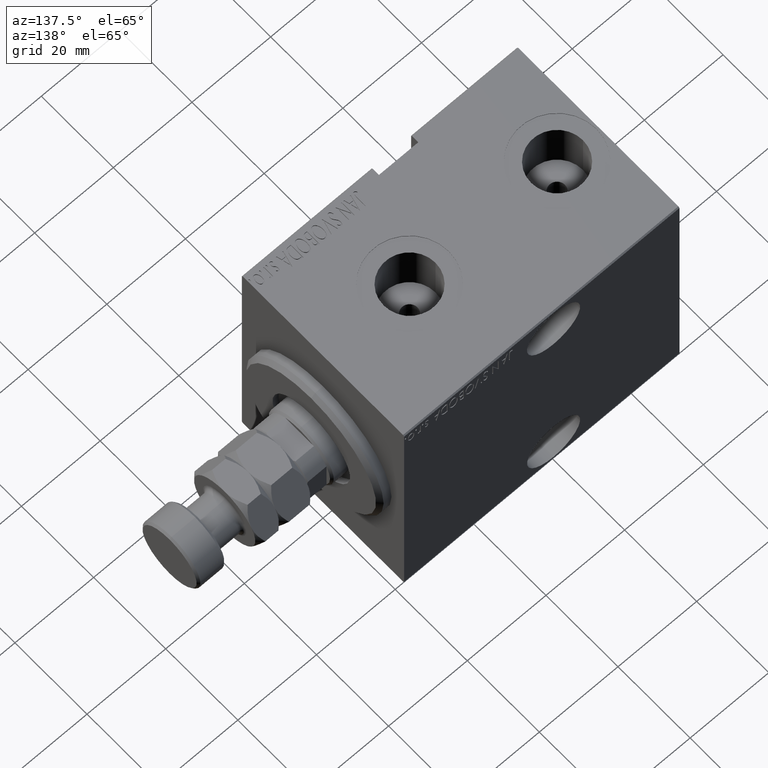
[diagram: clean part render]
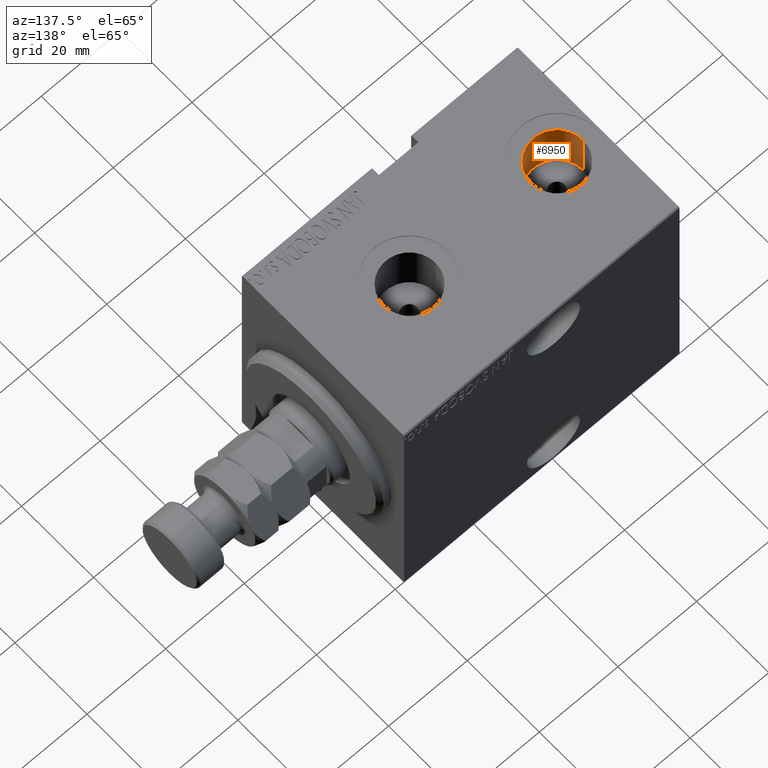
[diagram: same view with one face highlighted and labeled with its STEP entity id]
A machine part, auxiliary view. The second image highlights one B-rep face of the part: STEP entity #6950.
In plain terms, the highlighted cylindrical surface (edge-blend (fillet) strip) has radius 6.58 mm, axis along (0, 0, 1).
Its self-contained STEP definition (entity closure, byte-faithful):
#501 = DIRECTION ( 'NONE',  ( 1.000000000000000000, 0.000000000000000000, 0.000000000000000000 ) ) ;
#725 = CARTESIAN_POINT ( 'NONE',  ( 59.50000000000000711, -5.011423375044110611E-15, 32.39999999999999858 ) ) ;
#1391 = FACE_OUTER_BOUND ( 'NONE', #2628, .T. ) ;
#2202 = VECTOR ( 'NONE', #42994, 1000.000000000000000 ) ;
#2628 = EDGE_LOOP ( 'NONE', ( #26298, #34126, #30857, #41492 ) ) ;
#3578 = DIRECTION ( 'NONE',  ( -0.000000000000000000, -0.000000000000000000, 1.000000000000000000 ) ) ;
#3759 = CARTESIAN_POINT ( 'NONE',  ( 59.50000000000000711, -5.011423375044110611E-15, 19.23999999999999844 ) ) ;
#4219 = AXIS2_PLACEMENT_3D ( 'NONE', #725, #22477, #36387 ) ;
#6950 = ADVANCED_FACE ( 'NONE', ( #1391 ), #33365, .F. ) ;
#7054 = LINE ( 'NONE', #10769, #10218 ) ;
#10218 = VECTOR ( 'NONE', #3578, 1000.000000000000000 ) ;
#10769 = CARTESIAN_POINT ( 'NONE',  ( 66.07999999999999829, -5.011423375044110611E-15, 19.23999999999999844 ) ) ;
#12085 = VERTEX_POINT ( 'NONE', #25474 ) ;
#12395 = CARTESIAN_POINT ( 'NONE',  ( 52.92000000000000881, -4.205605781205153147E-15, 32.39999999999999858 ) ) ;
#12481 = VERTEX_POINT ( 'NONE', #34606 ) ;
#14064 = CIRCLE ( 'NONE', #45097, 6.579999999999995630 ) ;
#14545 = EDGE_CURVE ( 'NONE', #17044, #12481, #14064, .T. ) ;
#14864 = EDGE_CURVE ( 'NONE', #12481, #43170, #28677, .T. ) ;
#17044 = VERTEX_POINT ( 'NONE', #27698 ) ;
#18993 = CIRCLE ( 'NONE', #4219, 6.579999999999995630 ) ;
#21267 = AXIS2_PLACEMENT_3D ( 'NONE', #22031, #28999, #43966 ) ;
#22031 = CARTESIAN_POINT ( 'NONE',  ( 59.50000000000000711, -5.011423375044110611E-15, 19.23999999999999844 ) ) ;
#22477 = DIRECTION ( 'NONE',  ( 0.000000000000000000, 0.000000000000000000, 1.000000000000000000 ) ) ;
#25474 = CARTESIAN_POINT ( 'NONE',  ( 66.07999999999999829, -5.011423375044110611E-15, 32.39999999999999858 ) ) ;
#26298 = ORIENTED_EDGE ( 'NONE', *, *, #14864, .F. ) ;
#27698 = CARTESIAN_POINT ( 'NONE',  ( 66.07999999999999829, -5.011423375044110611E-15, 19.23999999999999844 ) ) ;
#28677 = LINE ( 'NONE', #43439, #2202 ) ;
#28999 = DIRECTION ( 'NONE',  ( -0.000000000000000000, -0.000000000000000000, 1.000000000000000000 ) ) ;
#30857 = ORIENTED_EDGE ( 'NONE', *, *, #40341, .T. ) ;
#33365 = CYLINDRICAL_SURFACE ( 'NONE', #21267, 6.579999999999995630 ) ;
#34126 = ORIENTED_EDGE ( 'NONE', *, *, #14545, .F. ) ;
#34606 = CARTESIAN_POINT ( 'NONE',  ( 52.92000000000000881, -4.205605781205153147E-15, 19.23999999999999844 ) ) ;
#36387 = DIRECTION ( 'NONE',  ( 1.000000000000000000, 0.000000000000000000, 0.000000000000000000 ) ) ;
#37813 = EDGE_CURVE ( 'NONE', #12085, #43170, #18993, .T. ) ;
#40341 = EDGE_CURVE ( 'NONE', #17044, #12085, #7054, .T. ) ;
#41492 = ORIENTED_EDGE ( 'NONE', *, *, #37813, .T. ) ;
#42416 = DIRECTION ( 'NONE',  ( 0.000000000000000000, 0.000000000000000000, 1.000000000000000000 ) ) ;
#42994 = DIRECTION ( 'NONE',  ( -0.000000000000000000, -0.000000000000000000, 1.000000000000000000 ) ) ;
#43170 = VERTEX_POINT ( 'NONE', #12395 ) ;
#43439 = CARTESIAN_POINT ( 'NONE',  ( 52.92000000000000881, -4.205605781205153147E-15, 19.23999999999999844 ) ) ;
#43966 = DIRECTION ( 'NONE',  ( 1.000000000000000000, 0.000000000000000000, 0.000000000000000000 ) ) ;
#45097 = AXIS2_PLACEMENT_3D ( 'NONE', #3759, #42416, #501 ) ;